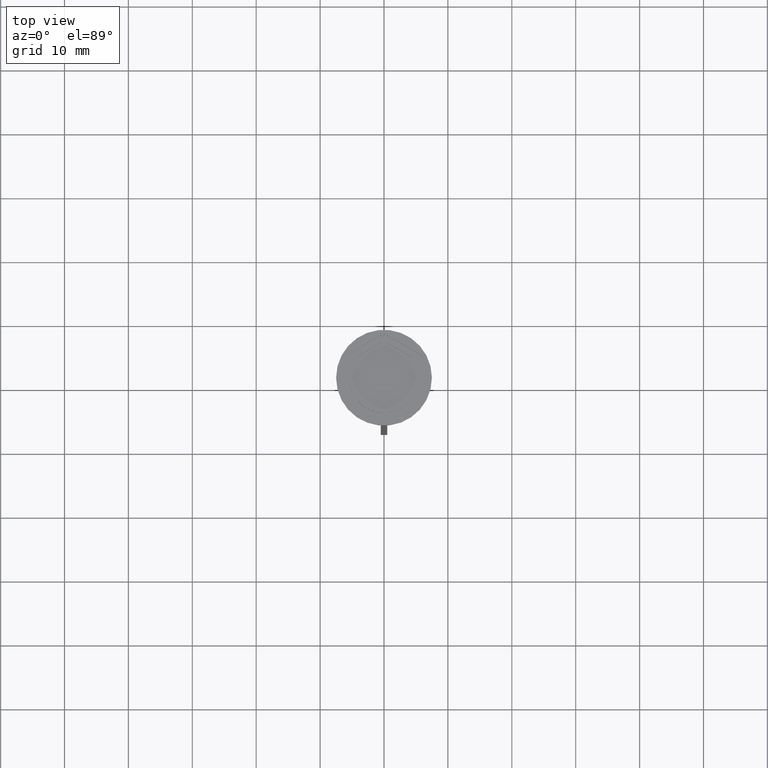
[diagram: clean part render]
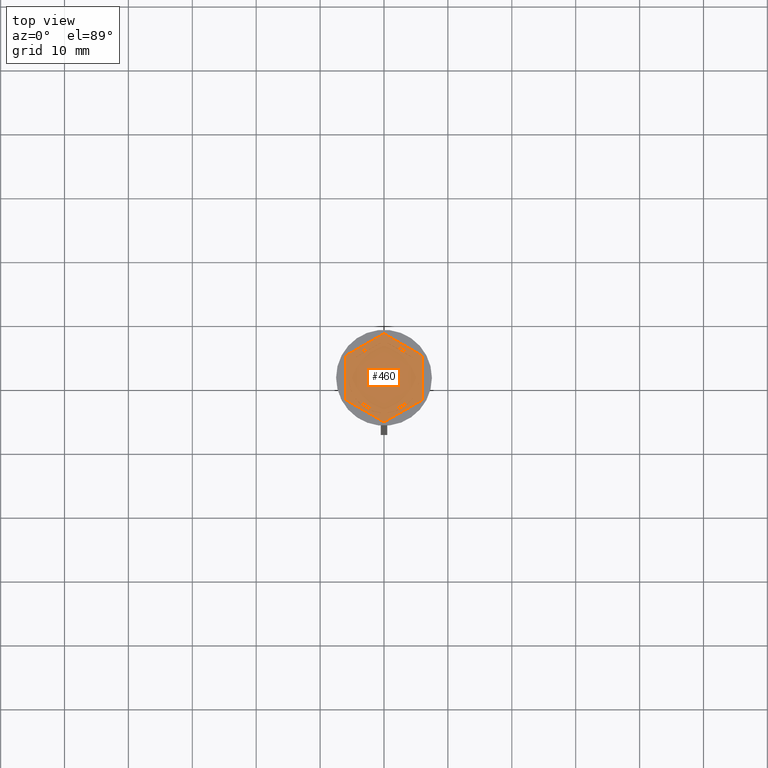
[diagram: same view with one face highlighted and labeled with its STEP entity id]
A machine part, top view. The second image highlights one B-rep face of the part: STEP entity #460.
In plain terms, the highlighted planar face has unit normal (0, 0, 1).
Its self-contained STEP definition (entity closure, byte-faithful):
#15 = VERTEX_POINT ( 'NONE', #573 ) ;
#26 = EDGE_LOOP ( 'NONE', ( #57, #760, #721, #1905, #348, #1191 ) ) ;
#43 = VERTEX_POINT ( 'NONE', #2133 ) ;
#57 = ORIENTED_EDGE ( 'NONE', *, *, #2384, .T. ) ;
#58 = VERTEX_POINT ( 'NONE', #626 ) ;
#72 = VERTEX_POINT ( 'NONE', #214 ) ;
#88 = FACE_BOUND ( 'NONE', #2288, .T. ) ;
#101 = FACE_BOUND ( 'NONE', #228, .T. ) ;
#112 = PLANE ( 'NONE',  #531 ) ;
#124 = DIRECTION ( 'NONE',  ( 0.000000000000000000, 0.000000000000000000, 1.000000000000000000 ) ) ;
#141 = ORIENTED_EDGE ( 'NONE', *, *, #596, .F. ) ;
#142 = CARTESIAN_POINT ( 'NONE',  ( 0.000000000000000000, 0.000000000000000000, -1.000000000000000000 ) ) ;
#149 = DIRECTION ( 'NONE',  ( 0.000000000000000000, 0.000000000000000000, 1.000000000000000000 ) ) ;
#151 = CARTESIAN_POINT ( 'NONE',  ( -1.734723475976807094E-15, -5.773502691896258199, -1.000000000000000888 ) ) ;
#153 = EDGE_CURVE ( 'NONE', #15, #2300, #405, .T. ) ;
#154 = DIRECTION ( 'NONE',  ( 0.000000000000000000, 1.000000000000000000, 0.000000000000000000 ) ) ;
#172 = LINE ( 'NONE', #934, #1449 ) ;
#190 = VERTEX_POINT ( 'NONE', #985 ) ;
#201 = VECTOR ( 'NONE', #512, 1000.000000000000000 ) ;
#214 = CARTESIAN_POINT ( 'NONE',  ( -4.484313483298445036, 3.184483095183233470, -1.000000000000000888 ) ) ;
#228 = EDGE_LOOP ( 'NONE', ( #2455, #1787 ) ) ;
#239 = ORIENTED_EDGE ( 'NONE', *, *, #1775, .F. ) ;
#245 = DIRECTION ( 'NONE',  ( 0.000000000000000000, 0.000000000000000000, 1.000000000000000000 ) ) ;
#247 = CIRCLE ( 'NONE', #1927, 5.500000000000001776 ) ;
#281 = AXIS2_PLACEMENT_3D ( 'NONE', #1872, #2251, #532 ) ;
#293 = EDGE_CURVE ( 'NONE', #332, #1307, #247, .T. ) ;
#313 = FACE_BOUND ( 'NONE', #1610, .T. ) ;
#328 = DIRECTION ( 'NONE',  ( 0.000000000000000000, 0.000000000000000000, 1.000000000000000000 ) ) ;
#332 = VERTEX_POINT ( 'NONE', #2374 ) ;
#345 = DIRECTION ( 'NONE',  ( -3.004629197474317076E-16, -1.000000000000000000, 0.000000000000000000 ) ) ;
#348 = ORIENTED_EDGE ( 'NONE', *, *, #768, .T. ) ;
#372 = VECTOR ( 'NONE', #1598, 1000.000000000000227 ) ;
#384 = EDGE_LOOP ( 'NONE', ( #1234, #239 ) ) ;
#388 = ORIENTED_EDGE ( 'NONE', *, *, #153, .F. ) ;
#405 = CIRCLE ( 'NONE', #1848, 5.500000000000001776 ) ;
#411 = VECTOR ( 'NONE', #984, 1000.000000000000114 ) ;
#423 = VERTEX_POINT ( 'NONE', #1092 ) ;
#460 = ADVANCED_FACE ( 'NONE', ( #313, #88, #2423, #2233, #1837, #101, #2052 ), #112, .T. ) ;
#462 = CARTESIAN_POINT ( 'NONE',  ( 6.000000000000000000, 3.464101615137753942, -1.000000000000000000 ) ) ;
#486 = CIRCLE ( 'NONE', #281, 5.500000000000001776 ) ;
#489 = CARTESIAN_POINT ( 'NONE',  ( 0.000000000000000000, 0.000000000000000000, -1.000000000000000000 ) ) ;
#512 = DIRECTION ( 'NONE',  ( -0.8660254037844385966, 0.5000000000000001110, 0.000000000000000000 ) ) ;
#519 = EDGE_CURVE ( 'NONE', #72, #799, #2223, .T. ) ;
#527 = CIRCLE ( 'NONE', #2043, 5.500000000000001776 ) ;
#531 = AXIS2_PLACEMENT_3D ( 'NONE', #489, #124, #1243 ) ;
#532 = DIRECTION ( 'NONE',  ( 1.000000000000000000, 0.000000000000000000, 0.000000000000000000 ) ) ;
#572 = VERTEX_POINT ( 'NONE', #1102 ) ;
#573 = CARTESIAN_POINT ( 'NONE',  ( 4.484313483298442371, 3.184483095183238355, -1.000000000000000888 ) ) ;
#574 = EDGE_CURVE ( 'NONE', #2300, #15, #1487, .T. ) ;
#576 = EDGE_CURVE ( 'NONE', #676, #190, #906, .T. ) ;
#596 = EDGE_CURVE ( 'NONE', #572, #43, #766, .T. ) ;
#597 = CARTESIAN_POINT ( 'NONE',  ( 0.000000000000000000, 0.000000000000000000, -1.000000000000000000 ) ) ;
#619 = CARTESIAN_POINT ( 'NONE',  ( 0.000000000000000000, 0.000000000000000000, -1.000000000000000000 ) ) ;
#626 = CARTESIAN_POINT ( 'NONE',  ( -5.000000000000000888, -2.291287847477921247, -1.000000000000000888 ) ) ;
#668 = CARTESIAN_POINT ( 'NONE',  ( 4.484313483298445036, -3.184483095183233026, -1.000000000000000888 ) ) ;
#676 = VERTEX_POINT ( 'NONE', #1734 ) ;
#689 = VECTOR ( 'NONE', #2304, 1000.000000000000000 ) ;
#695 = LINE ( 'NONE', #1089, #201 ) ;
#721 = ORIENTED_EDGE ( 'NONE', *, *, #1907, .T. ) ;
#723 = DIRECTION ( 'NONE',  ( 0.000000000000000000, 0.000000000000000000, 1.000000000000000000 ) ) ;
#730 = EDGE_CURVE ( 'NONE', #799, #72, #2462, .T. ) ;
#739 = CARTESIAN_POINT ( 'NONE',  ( 5.000000000000000888, 2.886751345948130876, -1.000000000000000888 ) ) ;
#748 = DIRECTION ( 'NONE',  ( 0.8660254037844387076, -0.4999999999999998335, 0.000000000000000000 ) ) ;
#754 = EDGE_LOOP ( 'NONE', ( #1150, #2025 ) ) ;
#760 = ORIENTED_EDGE ( 'NONE', *, *, #838, .T. ) ;
#766 = LINE ( 'NONE', #1506, #1688 ) ;
#768 = EDGE_CURVE ( 'NONE', #2478, #676, #2314, .T. ) ;
#775 = VERTEX_POINT ( 'NONE', #1380 ) ;
#799 = VERTEX_POINT ( 'NONE', #1024 ) ;
#805 = EDGE_CURVE ( 'NONE', #1261, #2478, #2341, .T. ) ;
#838 = EDGE_CURVE ( 'NONE', #1982, #775, #862, .T. ) ;
#857 = CARTESIAN_POINT ( 'NONE',  ( -6.000000000000000000, -3.464101615137755719, -1.000000000000000000 ) ) ;
#862 = LINE ( 'NONE', #1795, #2293 ) ;
#906 = LINE ( 'NONE', #918, #689 ) ;
#908 = AXIS2_PLACEMENT_3D ( 'NONE', #1415, #1959, #1400 ) ;
#918 = CARTESIAN_POINT ( 'NONE',  ( 5.999999999999998224, -3.464101615137753942, -1.000000000000000000 ) ) ;
#920 = DIRECTION ( 'NONE',  ( 1.000000000000000000, 0.000000000000000000, 0.000000000000000000 ) ) ;
#934 = CARTESIAN_POINT ( 'NONE',  ( -6.000000000000000000, 3.464101615137752166, -1.000000000000000000 ) ) ;
#984 = DIRECTION ( 'NONE',  ( 0.8660254037844388186, -0.4999999999999997224, 0.000000000000000000 ) ) ;
#985 = CARTESIAN_POINT ( 'NONE',  ( 6.000000000000000000, 3.464101615137753942, -1.000000000000000000 ) ) ;
#986 = DIRECTION ( 'NONE',  ( 0.000000000000000000, 0.000000000000000000, 1.000000000000000000 ) ) ;
#1024 = CARTESIAN_POINT ( 'NONE',  ( -0.5156865167015569629, 5.475770942661155161, -1.000000000000000888 ) ) ;
#1050 = VECTOR ( 'NONE', #1467, 1000.000000000000114 ) ;
#1068 = LINE ( 'NONE', #151, #1050 ) ;
#1089 = CARTESIAN_POINT ( 'NONE',  ( -5.000000000000000888, -2.886751345948129099, -1.000000000000000888 ) ) ;
#1092 = CARTESIAN_POINT ( 'NONE',  ( -5.500000000000001776, 0.000000000000000000, -1.000000000000000000 ) ) ;
#1102 = CARTESIAN_POINT ( 'NONE',  ( 5.000000000000000888, 2.291287847477922135, -1.000000000000000888 ) ) ;
#1150 = ORIENTED_EDGE ( 'NONE', *, *, #1784, .F. ) ;
#1191 = ORIENTED_EDGE ( 'NONE', *, *, #576, .T. ) ;
#1234 = ORIENTED_EDGE ( 'NONE', *, *, #293, .F. ) ;
#1243 = DIRECTION ( 'NONE',  ( 1.000000000000000000, 0.000000000000000000, -0.000000000000000000 ) ) ;
#1261 = VERTEX_POINT ( 'NONE', #857 ) ;
#1307 = VERTEX_POINT ( 'NONE', #668 ) ;
#1346 = EDGE_CURVE ( 'NONE', #58, #1998, #2382, .T. ) ;
#1356 = CIRCLE ( 'NONE', #908, 5.500000000000001776 ) ;
#1380 = CARTESIAN_POINT ( 'NONE',  ( -6.000000000000000000, 3.464101615137752166, -1.000000000000000000 ) ) ;
#1382 = DIRECTION ( 'NONE',  ( 1.000000000000000000, 0.000000000000000000, 0.000000000000000000 ) ) ;
#1400 = DIRECTION ( 'NONE',  ( 1.000000000000000000, 0.000000000000000000, 0.000000000000000000 ) ) ;
#1415 = CARTESIAN_POINT ( 'NONE',  ( 0.000000000000000000, 0.000000000000000000, -1.000000000000000000 ) ) ;
#1446 = AXIS2_PLACEMENT_3D ( 'NONE', #142, #723, #1843 ) ;
#1449 = VECTOR ( 'NONE', #1699, 1000.000000000000000 ) ;
#1458 = EDGE_CURVE ( 'NONE', #423, #58, #2003, .T. ) ;
#1467 = DIRECTION ( 'NONE',  ( -0.8660254037844387076, -0.4999999999999997224, 0.000000000000000000 ) ) ;
#1468 = EDGE_CURVE ( 'NONE', #1998, #423, #486, .T. ) ;
#1476 = DIRECTION ( 'NONE',  ( 1.000000000000000000, 0.000000000000000000, 0.000000000000000000 ) ) ;
#1483 = ORIENTED_EDGE ( 'NONE', *, *, #1468, .F. ) ;
#1487 = LINE ( 'NONE', #739, #2131 ) ;
#1506 = CARTESIAN_POINT ( 'NONE',  ( 4.999999999999999112, -2.886751345948130432, -1.000000000000000888 ) ) ;
#1533 = CARTESIAN_POINT ( 'NONE',  ( 0.5156865167015596274, 5.475770942661155161, -1.000000000000000888 ) ) ;
#1573 = CARTESIAN_POINT ( 'NONE',  ( -6.000000000000000000, -3.464101615137755719, -1.000000000000000000 ) ) ;
#1598 = DIRECTION ( 'NONE',  ( 0.8660254037844385966, 0.5000000000000000000, 0.000000000000000000 ) ) ;
#1610 = EDGE_LOOP ( 'NONE', ( #388, #2481 ) ) ;
#1638 = CARTESIAN_POINT ( 'NONE',  ( -4.484313483298445036, -3.184483095183233470, -1.000000000000000888 ) ) ;
#1688 = VECTOR ( 'NONE', #345, 1000.000000000000000 ) ;
#1692 = CARTESIAN_POINT ( 'NONE',  ( -5.000000000000000888, 2.886751345948129099, -1.000000000000000888 ) ) ;
#1699 = DIRECTION ( 'NONE',  ( 0.000000000000000000, -1.000000000000000000, 0.000000000000000000 ) ) ;
#1710 = CARTESIAN_POINT ( 'NONE',  ( 0.000000000000000000, 6.928203230275506996, -1.000000000000000000 ) ) ;
#1734 = CARTESIAN_POINT ( 'NONE',  ( 5.999999999999998224, -3.464101615137753942, -1.000000000000000000 ) ) ;
#1771 = CARTESIAN_POINT ( 'NONE',  ( -0.5156865167015569629, -5.475770942661155161, -1.000000000000000888 ) ) ;
#1775 = EDGE_CURVE ( 'NONE', #1307, #332, #1068, .T. ) ;
#1784 = EDGE_CURVE ( 'NONE', #2140, #2433, #527, .T. ) ;
#1787 = ORIENTED_EDGE ( 'NONE', *, *, #519, .F. ) ;
#1795 = CARTESIAN_POINT ( 'NONE',  ( 0.000000000000000000, 6.928203230275506996, -1.000000000000000000 ) ) ;
#1837 = FACE_BOUND ( 'NONE', #2173, .T. ) ;
#1843 = DIRECTION ( 'NONE',  ( 1.000000000000000000, 0.000000000000000000, 0.000000000000000000 ) ) ;
#1848 = AXIS2_PLACEMENT_3D ( 'NONE', #2437, #149, #920 ) ;
#1872 = CARTESIAN_POINT ( 'NONE',  ( 0.000000000000000000, 0.000000000000000000, -1.000000000000000000 ) ) ;
#1892 = VECTOR ( 'NONE', #2060, 1000.000000000000000 ) ;
#1905 = ORIENTED_EDGE ( 'NONE', *, *, #805, .T. ) ;
#1907 = EDGE_CURVE ( 'NONE', #775, #1261, #172, .T. ) ;
#1927 = AXIS2_PLACEMENT_3D ( 'NONE', #597, #986, #1382 ) ;
#1938 = LINE ( 'NONE', #462, #2032 ) ;
#1959 = DIRECTION ( 'NONE',  ( 0.000000000000000000, 0.000000000000000000, 1.000000000000000000 ) ) ;
#1982 = VERTEX_POINT ( 'NONE', #1710 ) ;
#1986 = DIRECTION ( 'NONE',  ( -0.8660254037844385966, -0.4999999999999998890, 0.000000000000000000 ) ) ;
#1998 = VERTEX_POINT ( 'NONE', #2153 ) ;
#2003 = CIRCLE ( 'NONE', #1446, 5.500000000000001776 ) ;
#2025 = ORIENTED_EDGE ( 'NONE', *, *, #2077, .F. ) ;
#2032 = VECTOR ( 'NONE', #2180, 1000.000000000000000 ) ;
#2043 = AXIS2_PLACEMENT_3D ( 'NONE', #2053, #328, #1476 ) ;
#2052 = FACE_OUTER_BOUND ( 'NONE', #26, .T. ) ;
#2053 = CARTESIAN_POINT ( 'NONE',  ( 0.000000000000000000, 0.000000000000000000, -1.000000000000000000 ) ) ;
#2060 = DIRECTION ( 'NONE',  ( 0.8660254037844385966, 0.5000000000000001110, -0.000000000000000000 ) ) ;
#2077 = EDGE_CURVE ( 'NONE', #2433, #2140, #695, .T. ) ;
#2122 = CARTESIAN_POINT ( 'NONE',  ( -4.280685092543093048E-16, -6.928203230275507885, -1.000000000000000000 ) ) ;
#2131 = VECTOR ( 'NONE', #748, 1000.000000000000114 ) ;
#2133 = CARTESIAN_POINT ( 'NONE',  ( 4.999999999999999112, -2.291287847477924355, -1.000000000000000888 ) ) ;
#2140 = VERTEX_POINT ( 'NONE', #1638 ) ;
#2153 = CARTESIAN_POINT ( 'NONE',  ( -5.000000000000000888, 2.291287847477921247, -1.000000000000000888 ) ) ;
#2173 = EDGE_LOOP ( 'NONE', ( #1483, #2447, #2217 ) ) ;
#2180 = DIRECTION ( 'NONE',  ( -0.8660254037844387076, 0.4999999999999998335, 0.000000000000000000 ) ) ;
#2217 = ORIENTED_EDGE ( 'NONE', *, *, #1458, .F. ) ;
#2223 = LINE ( 'NONE', #2486, #1892 ) ;
#2233 = FACE_BOUND ( 'NONE', #754, .T. ) ;
#2251 = DIRECTION ( 'NONE',  ( 0.000000000000000000, 0.000000000000000000, 1.000000000000000000 ) ) ;
#2288 = EDGE_LOOP ( 'NONE', ( #2459, #141 ) ) ;
#2293 = VECTOR ( 'NONE', #1986, 1000.000000000000227 ) ;
#2300 = VERTEX_POINT ( 'NONE', #1533 ) ;
#2304 = DIRECTION ( 'NONE',  ( 2.503857664561932376E-16, 1.000000000000000000, 0.000000000000000000 ) ) ;
#2314 = LINE ( 'NONE', #2354, #372 ) ;
#2331 = DIRECTION ( 'NONE',  ( 1.000000000000000000, 0.000000000000000000, 0.000000000000000000 ) ) ;
#2341 = LINE ( 'NONE', #1573, #411 ) ;
#2354 = CARTESIAN_POINT ( 'NONE',  ( -4.280685092543093048E-16, -6.928203230275507885, -1.000000000000000000 ) ) ;
#2358 = EDGE_CURVE ( 'NONE', #43, #572, #1356, .T. ) ;
#2368 = VECTOR ( 'NONE', #154, 1000.000000000000000 ) ;
#2374 = CARTESIAN_POINT ( 'NONE',  ( 0.5156865167015526330, -5.475770942661155161, -1.000000000000000888 ) ) ;
#2380 = AXIS2_PLACEMENT_3D ( 'NONE', #619, #245, #2331 ) ;
#2382 = LINE ( 'NONE', #1692, #2368 ) ;
#2384 = EDGE_CURVE ( 'NONE', #190, #1982, #1938, .T. ) ;
#2423 = FACE_BOUND ( 'NONE', #384, .T. ) ;
#2433 = VERTEX_POINT ( 'NONE', #1771 ) ;
#2437 = CARTESIAN_POINT ( 'NONE',  ( 0.000000000000000000, 0.000000000000000000, -1.000000000000000000 ) ) ;
#2447 = ORIENTED_EDGE ( 'NONE', *, *, #1346, .F. ) ;
#2455 = ORIENTED_EDGE ( 'NONE', *, *, #730, .F. ) ;
#2459 = ORIENTED_EDGE ( 'NONE', *, *, #2358, .F. ) ;
#2462 = CIRCLE ( 'NONE', #2380, 5.500000000000001776 ) ;
#2478 = VERTEX_POINT ( 'NONE', #2122 ) ;
#2481 = ORIENTED_EDGE ( 'NONE', *, *, #574, .F. ) ;
#2486 = CARTESIAN_POINT ( 'NONE',  ( 4.336808689942017736E-16, 5.773502691896259087, -1.000000000000000888 ) ) ;